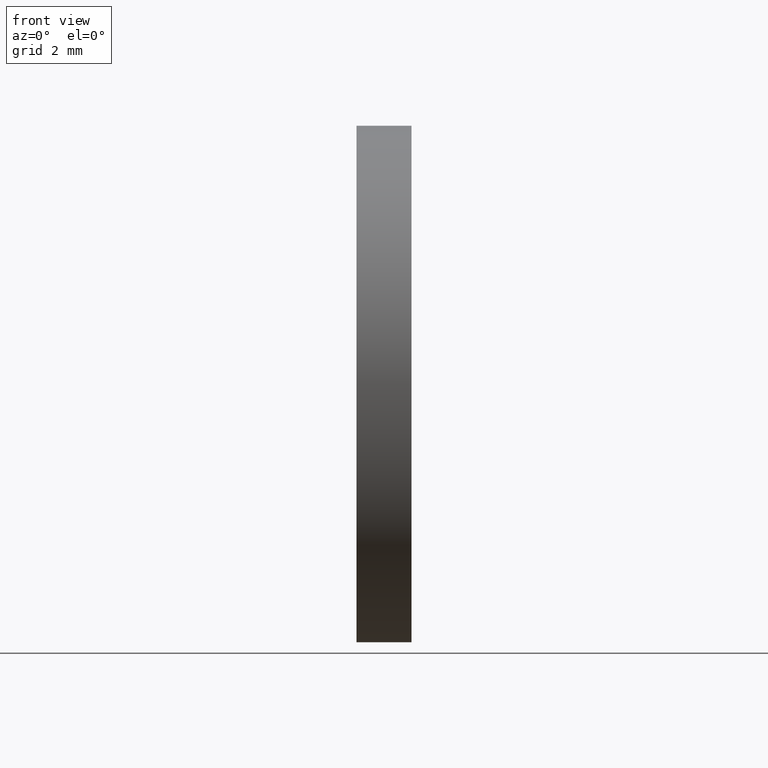
[diagram: clean part render]
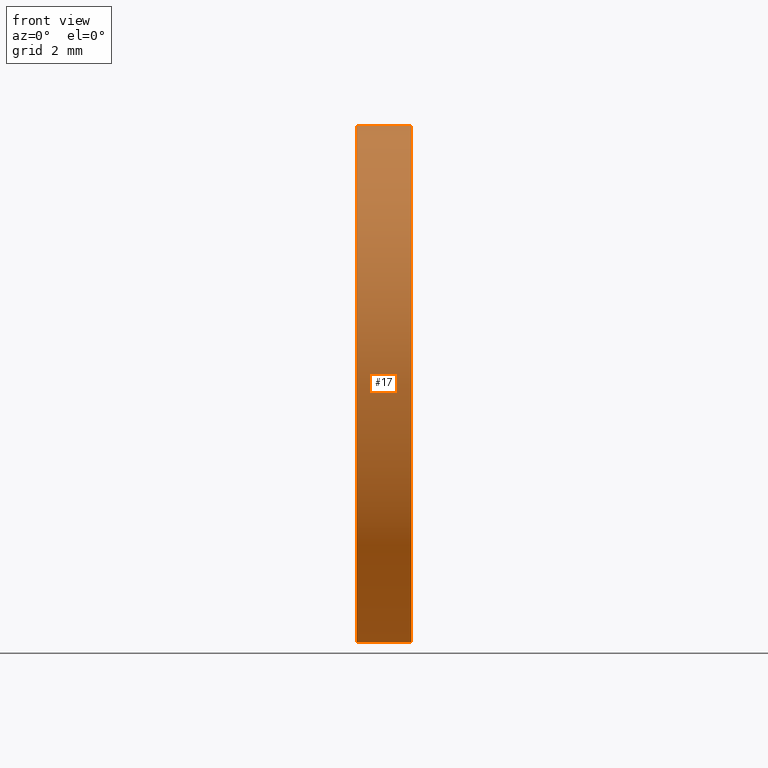
[diagram: same view with one face highlighted and labeled with its STEP entity id]
A machine part, front view. The second image highlights one B-rep face of the part: STEP entity #17.
In plain terms, the highlighted cylindrical surface (partial cylindrical patch) has radius 9.525 mm, axis along (-1, 0, 0).
Its self-contained STEP definition (entity closure, byte-faithful):
#17 = ADVANCED_FACE ( 'NONE', ( #47 ), #43, .T. ) ;
#19 = EDGE_CURVE ( 'NONE', #63, #42, #73, .T. ) ;
#26 = EDGE_CURVE ( 'NONE', #32, #63, #209, .T. ) ;
#27 = ORIENTED_EDGE ( 'NONE', *, *, #19, .T. ) ;
#32 = VERTEX_POINT ( 'NONE', #86 ) ;
#34 = ORIENTED_EDGE ( 'NONE', *, *, #39, .F. ) ;
#35 = ORIENTED_EDGE ( 'NONE', *, *, #26, .T. ) ;
#39 = EDGE_CURVE ( 'NONE', #32, #40, #198, .T. ) ;
#40 = VERTEX_POINT ( 'NONE', #238 ) ;
#42 = VERTEX_POINT ( 'NONE', #237 ) ;
#43 = CYLINDRICAL_SURFACE ( 'NONE', #77, 0.3750000000000000600 ) ;
#47 = FACE_OUTER_BOUND ( 'NONE', #57, .T. ) ;
#53 = ORIENTED_EDGE ( 'NONE', *, *, #67, .F. ) ;
#57 = EDGE_LOOP ( 'NONE', ( #34, #35, #27, #53 ) ) ;
#63 = VERTEX_POINT ( 'NONE', #249 ) ;
#67 = EDGE_CURVE ( 'NONE', #40, #42, #102, .T. ) ;
#70 = DIRECTION ( 'NONE',  ( -1.000000000000000000, 0.0000000000000000000, 0.0000000000000000000 ) ) ;
#71 = VECTOR ( 'NONE', #70, 39.37007874015748100 ) ;
#72 = CARTESIAN_POINT ( 'NONE',  ( -1.721125226614714300, 0.0000000000000000000, 0.3750000000000000600 ) ) ;
#73 = LINE ( 'NONE', #72, #71 ) ;
#74 = DIRECTION ( 'NONE',  ( 0.0000000000000000000, 0.0000000000000000000, 1.000000000000000000 ) ) ;
#75 = DIRECTION ( 'NONE',  ( -1.000000000000000000, 0.0000000000000000000, 0.0000000000000000000 ) ) ;
#76 = CARTESIAN_POINT ( 'NONE',  ( -1.721125226614714300, 0.0000000000000000000, 0.0000000000000000000 ) ) ;
#77 = AXIS2_PLACEMENT_3D ( 'NONE', #76, #75, #74 ) ;
#86 = CARTESIAN_POINT ( 'NONE',  ( 0.07999999999999996000, 4.592425496802575500E-017, -0.3750000000000000600 ) ) ;
#98 = DIRECTION ( 'NONE',  ( 0.0000000000000000000, 0.0000000000000000000, 1.000000000000000000 ) ) ;
#99 = DIRECTION ( 'NONE',  ( -1.000000000000000000, 0.0000000000000000000, 0.0000000000000000000 ) ) ;
#100 = CARTESIAN_POINT ( 'NONE',  ( 0.0000000000000000000, 0.0000000000000000000, 0.0000000000000000000 ) ) ;
#101 = AXIS2_PLACEMENT_3D ( 'NONE', #100, #99, #98 ) ;
#102 = CIRCLE ( 'NONE', #101, 0.3750000000000000600 ) ;
#108 = CARTESIAN_POINT ( 'NONE',  ( 0.07999999999999996000, 0.0000000000000000000, 0.0000000000000000000 ) ) ;
#198 = LINE ( 'NONE', #225, #224 ) ;
#209 = CIRCLE ( 'NONE', #215, 0.3750000000000000600 ) ;
#215 = AXIS2_PLACEMENT_3D ( 'NONE', #108, #222, #241 ) ;
#222 = DIRECTION ( 'NONE',  ( -1.000000000000000000, 0.0000000000000000000, 0.0000000000000000000 ) ) ;
#223 = DIRECTION ( 'NONE',  ( -1.000000000000000000, 0.0000000000000000000, 0.0000000000000000000 ) ) ;
#224 = VECTOR ( 'NONE', #223, 39.37007874015748100 ) ;
#225 = CARTESIAN_POINT ( 'NONE',  ( -1.721125226614714300, 4.592425496802575500E-017, -0.3750000000000000600 ) ) ;
#237 = CARTESIAN_POINT ( 'NONE',  ( 0.0000000000000000000, 0.0000000000000000000, 0.3750000000000000600 ) ) ;
#238 = CARTESIAN_POINT ( 'NONE',  ( 0.0000000000000000000, 4.592425496802575500E-017, -0.3750000000000000600 ) ) ;
#241 = DIRECTION ( 'NONE',  ( 0.0000000000000000000, 0.0000000000000000000, 1.000000000000000000 ) ) ;
#249 = CARTESIAN_POINT ( 'NONE',  ( 0.07999999999999996000, 0.0000000000000000000, 0.3750000000000000600 ) ) ;